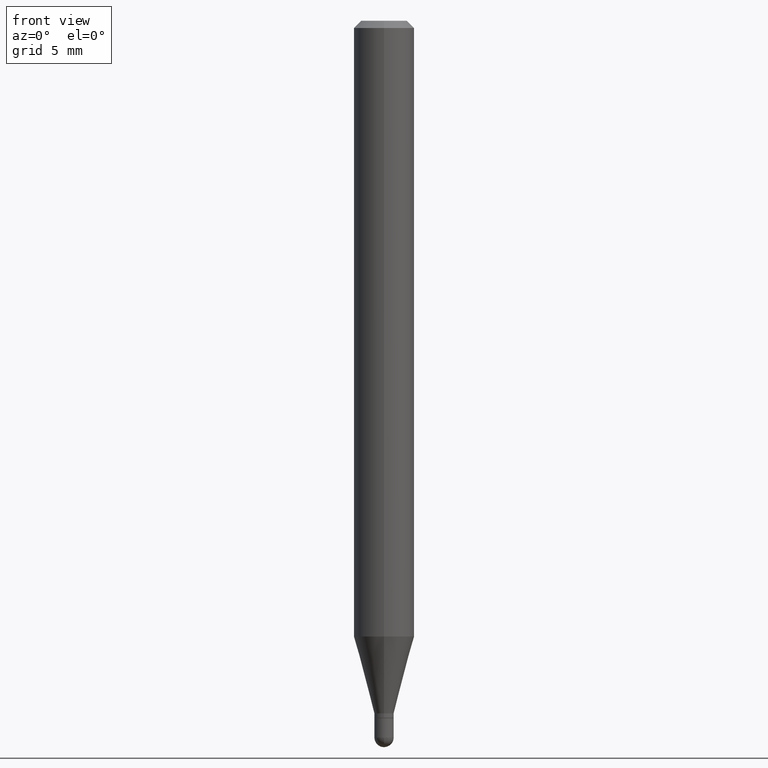
[diagram: clean part render]
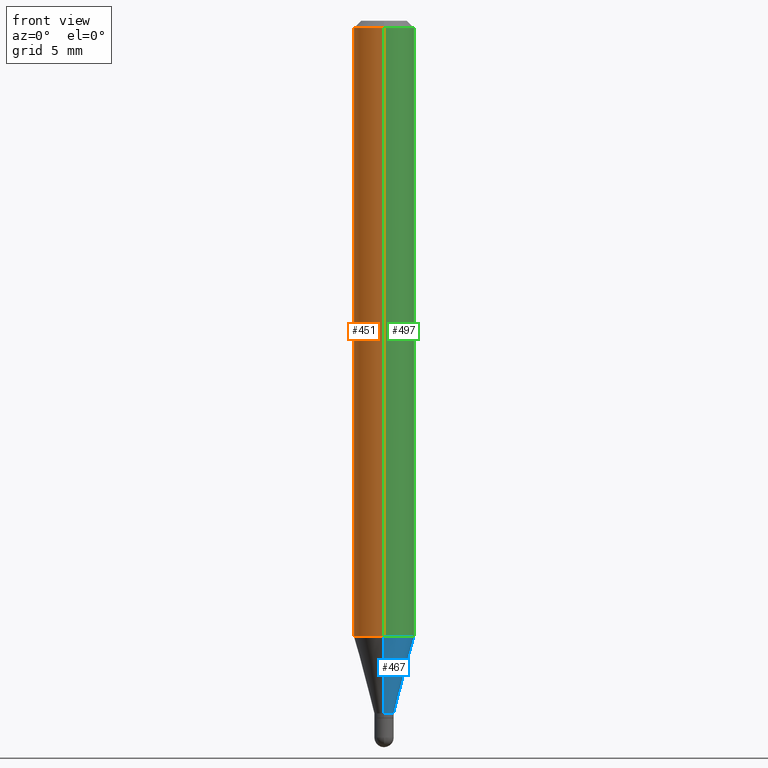
[diagram: same view with three faces highlighted in distinct colors, each labeled with its STEP entity id]
A machine part, front view with three faces highlighted in distinct colors.
Their STEP definitions:

[orange] entity #451 — the highlighted cylindrical surface (edge-blend (fillet) strip) has radius 1.5875 mm, axis along (-0, 0, 1).
#15 = CARTESIAN_POINT ( 'NONE',  ( 4.440892098500934804E-16, 0.06249999999999554523, -1.271387840678323444 ) ) ;
#21 = ORIENTED_EDGE ( 'NONE', *, *, #320, .F. ) ;
#31 = DIRECTION ( 'NONE',  ( -2.445483089663186682E-29, 3.491460884089612684E-15, 1.000000000000000000 ) ) ;
#43 = CARTESIAN_POINT ( 'NONE',  ( -4.364351673553912750E-16, -0.06250000000000005551, -0.01499999999999979128 ) ) ;
#50 = CARTESIAN_POINT ( 'NONE',  ( 4.440892098500938748E-16, 0.06249999999999995143, -0.01500000000000022669 ) ) ;
#52 = DIRECTION ( 'NONE',  ( -2.445483089663186682E-29, 3.491460884089612684E-15, 1.000000000000000000 ) ) ;
#62 = ORIENTED_EDGE ( 'NONE', *, *, #67, .F. ) ;
#67 = EDGE_CURVE ( 'NONE', #390, #173, #347, .T. ) ;
#78 = VERTEX_POINT ( 'NONE', #43 ) ;
#99 = DIRECTION ( 'NONE',  ( -6.982962677686265922E-15, -1.000000000000000000, 3.483106191921935554E-15 ) ) ;
#103 = ORIENTED_EDGE ( 'NONE', *, *, #285, .T. ) ;
#116 = DIRECTION ( 'NONE',  ( -2.445483089663186682E-29, 3.491460884089612684E-15, 1.000000000000000000 ) ) ;
#119 = EDGE_CURVE ( 'NONE', #327, #78, #200, .T. ) ;
#135 = CARTESIAN_POINT ( 'NONE',  ( 3.109157464782232884E-29, -4.439000914235523162E-15, -1.271387840678323222 ) ) ;
#162 = DIRECTION ( 'NONE',  ( -2.445483089663186682E-29, 3.491460884089612684E-15, 1.000000000000000000 ) ) ;
#173 = VERTEX_POINT ( 'NONE', #50 ) ;
#182 = CARTESIAN_POINT ( 'NONE',  ( -4.364351673553605587E-16, -0.06250000000000445477, -1.271387840678323000 ) ) ;
#183 = ORIENTED_EDGE ( 'NONE', *, *, #119, .T. ) ;
#184 = CYLINDRICAL_SURFACE ( 'NONE', #457, 0.06250000000000000000 ) ;
#189 = DIRECTION ( 'NONE',  ( -6.982962677686265922E-15, -1.000000000000000000, 3.491460884089612684E-15 ) ) ;
#200 = LINE ( 'NONE', #206, #204 ) ;
#204 = VECTOR ( 'NONE', #162, 39.37007874015748143 ) ;
#206 = CARTESIAN_POINT ( 'NONE',  ( -4.364351673553916201E-16, -0.06250000000000000000, 2.182163052556007927E-16 ) ) ;
#249 = AXIS2_PLACEMENT_3D ( 'NONE', #405, #52, #99 ) ;
#252 = DIRECTION ( 'NONE',  ( -6.982962677686265922E-15, -1.000000000000000000, 4.370956789862821150E-15 ) ) ;
#283 = VECTOR ( 'NONE', #116, 39.37007874015748143 ) ;
#285 = EDGE_CURVE ( 'NONE', #390, #327, #393, .T. ) ;
#290 = EDGE_LOOP ( 'NONE', ( #62, #103, #183, #21 ) ) ;
#320 = EDGE_CURVE ( 'NONE', #173, #78, #464, .T. ) ;
#327 = VERTEX_POINT ( 'NONE', #182 ) ;
#347 = LINE ( 'NONE', #465, #283 ) ;
#351 = AXIS2_PLACEMENT_3D ( 'NONE', #135, #444, #252 ) ;
#383 = FACE_OUTER_BOUND ( 'NONE', #290, .T. ) ;
#389 = CARTESIAN_POINT ( 'NONE',  ( 0.000000000000000000, 0.000000000000000000, 0.000000000000000000 ) ) ;
#390 = VERTEX_POINT ( 'NONE', #15 ) ;
#393 = CIRCLE ( 'NONE', #351, 0.06250000000000000000 ) ;
#405 = CARTESIAN_POINT ( 'NONE',  ( 3.668224634494782440E-31, -5.237191326134422452E-17, -0.01500000000000000812 ) ) ;
#444 = DIRECTION ( 'NONE',  ( -2.445483089663186682E-29, 3.491460884089612684E-15, 1.000000000000000000 ) ) ;
#451 = ADVANCED_FACE ( 'NONE', ( #383 ), #184, .T. ) ;
#457 = AXIS2_PLACEMENT_3D ( 'NONE', #389, #31, #189 ) ;
#464 = CIRCLE ( 'NONE', #249, 0.06250000000000000000 ) ;
#465 = CARTESIAN_POINT ( 'NONE',  ( 4.440892098500625669E-16, 0.06250000000000000000, -2.182163052556007927E-16 ) ) ;

[blue] entity #467 — the highlighted conical surface has half-angle 15 deg.
#14 = CIRCLE ( 'NONE', #508, 0.01999999999999992062 ) ;
#15 = CARTESIAN_POINT ( 'NONE',  ( 4.440892098500934804E-16, 0.06249999999999554523, -1.271387840678323444 ) ) ;
#18 = EDGE_CURVE ( 'NONE', #66, #390, #461, .T. ) ;
#51 = EDGE_CURVE ( 'NONE', #175, #66, #14, .T. ) ;
#66 = VERTEX_POINT ( 'NONE', #192 ) ;
#68 = CARTESIAN_POINT ( 'NONE',  ( 3.497040818218357490E-29, -4.992789064248145932E-15, -1.429999999999999938 ) ) ;
#88 = CARTESIAN_POINT ( 'NONE',  ( -1.396592535536897664E-16, -0.02000000000000491315, -1.429999999999999938 ) ) ;
#90 = VECTOR ( 'NONE', #485, 39.37007874015748143 ) ;
#113 = DIRECTION ( 'NONE',  ( -6.982962677686265133E-15, -1.000000000000000000, 0.000000000000000000 ) ) ;
#144 = FACE_OUTER_BOUND ( 'NONE', #468, .T. ) ;
#149 = DIRECTION ( 'NONE',  ( -2.445483089663186682E-29, 3.491460884089612684E-15, 1.000000000000000000 ) ) ;
#150 = CARTESIAN_POINT ( 'NONE',  ( 3.497040818218357490E-29, -4.992789064248145932E-15, -1.429999999999999938 ) ) ;
#168 = CARTESIAN_POINT ( 'NONE',  ( 3.109157464782232884E-29, -4.439000914235523162E-15, -1.271387840678323222 ) ) ;
#175 = VERTEX_POINT ( 'NONE', #88 ) ;
#182 = CARTESIAN_POINT ( 'NONE',  ( -4.364351673553605587E-16, -0.06250000000000445477, -1.271387840678323000 ) ) ;
#192 = CARTESIAN_POINT ( 'NONE',  ( 2.930988785010741768E-16, 0.01999999999999492462, -1.429999999999999938 ) ) ;
#208 = DIRECTION ( 'NONE',  ( -2.445483089663186682E-29, 3.491460884089612684E-15, 1.000000000000000000 ) ) ;
#213 = CARTESIAN_POINT ( 'NONE',  ( -1.396592535536897664E-16, -0.02000000000000491315, -1.429999999999999938 ) ) ;
#263 = DIRECTION ( 'NONE',  ( -2.445483089663186682E-29, 3.491460884089612684E-15, 1.000000000000000000 ) ) ;
#302 = DIRECTION ( 'NONE',  ( 1.839019923739603076E-15, 0.2588190451025253469, 0.9659258262890670910 ) ) ;
#307 = VECTOR ( 'NONE', #302, 39.37007874015748143 ) ;
#327 = VERTEX_POINT ( 'NONE', #182 ) ;
#328 = LINE ( 'NONE', #213, #90 ) ;
#329 = EDGE_CURVE ( 'NONE', #327, #390, #359, .T. ) ;
#340 = ORIENTED_EDGE ( 'NONE', *, *, #329, .F. ) ;
#344 = CONICAL_SURFACE ( 'NONE', #401, 0.01999999999999992062, 0.2617993877991506846 ) ;
#359 = CIRCLE ( 'NONE', #424, 0.06250000000000000000 ) ;
#380 = ORIENTED_EDGE ( 'NONE', *, *, #51, .T. ) ;
#385 = CARTESIAN_POINT ( 'NONE',  ( 1.421085471520544049E-16, 0.01999999999999492462, -1.429999999999999938 ) ) ;
#390 = VERTEX_POINT ( 'NONE', #15 ) ;
#401 = AXIS2_PLACEMENT_3D ( 'NONE', #68, #149, #113 ) ;
#406 = EDGE_CURVE ( 'NONE', #175, #327, #328, .T. ) ;
#424 = AXIS2_PLACEMENT_3D ( 'NONE', #168, #208, #492 ) ;
#425 = DIRECTION ( 'NONE',  ( -6.982962677686265133E-15, -1.000000000000000000, 0.000000000000000000 ) ) ;
#427 = ORIENTED_EDGE ( 'NONE', *, *, #406, .F. ) ;
#450 = ORIENTED_EDGE ( 'NONE', *, *, #18, .T. ) ;
#461 = LINE ( 'NONE', #385, #307 ) ;
#467 = ADVANCED_FACE ( 'NONE', ( #144 ), #344, .T. ) ;
#468 = EDGE_LOOP ( 'NONE', ( #380, #450, #340, #427 ) ) ;
#485 = DIRECTION ( 'NONE',  ( -1.807323732225332900E-15, -0.2588190451025185745, 0.9659258262890689783 ) ) ;
#492 = DIRECTION ( 'NONE',  ( -6.982962677686265922E-15, -1.000000000000000000, 4.370956789862821150E-15 ) ) ;
#508 = AXIS2_PLACEMENT_3D ( 'NONE', #150, #263, #425 ) ;

[green] entity #497 — the highlighted cylindrical surface (edge-blend (fillet) strip) has radius 1.5875 mm, axis along (-0, 0, 1).
#15 = CARTESIAN_POINT ( 'NONE',  ( 4.440892098500934804E-16, 0.06249999999999554523, -1.271387840678323444 ) ) ;
#28 = DIRECTION ( 'NONE',  ( -2.445483089663186682E-29, 3.491460884089612684E-15, 1.000000000000000000 ) ) ;
#43 = CARTESIAN_POINT ( 'NONE',  ( -4.364351673553912750E-16, -0.06250000000000005551, -0.01499999999999979128 ) ) ;
#50 = CARTESIAN_POINT ( 'NONE',  ( 4.440892098500938748E-16, 0.06249999999999995143, -0.01500000000000022669 ) ) ;
#64 = AXIS2_PLACEMENT_3D ( 'NONE', #511, #123, #271 ) ;
#67 = EDGE_CURVE ( 'NONE', #390, #173, #347, .T. ) ;
#78 = VERTEX_POINT ( 'NONE', #43 ) ;
#116 = DIRECTION ( 'NONE',  ( -2.445483089663186682E-29, 3.491460884089612684E-15, 1.000000000000000000 ) ) ;
#119 = EDGE_CURVE ( 'NONE', #327, #78, #200, .T. ) ;
#123 = DIRECTION ( 'NONE',  ( -2.445483089663186682E-29, 3.491460884089612684E-15, 1.000000000000000000 ) ) ;
#131 = EDGE_CURVE ( 'NONE', #78, #173, #146, .T. ) ;
#146 = CIRCLE ( 'NONE', #64, 0.06250000000000000000 ) ;
#155 = CYLINDRICAL_SURFACE ( 'NONE', #220, 0.06250000000000000000 ) ;
#162 = DIRECTION ( 'NONE',  ( -2.445483089663186682E-29, 3.491460884089612684E-15, 1.000000000000000000 ) ) ;
#168 = CARTESIAN_POINT ( 'NONE',  ( 3.109157464782232884E-29, -4.439000914235523162E-15, -1.271387840678323222 ) ) ;
#171 = EDGE_LOOP ( 'NONE', ( #195, #458, #218, #404 ) ) ;
#173 = VERTEX_POINT ( 'NONE', #50 ) ;
#182 = CARTESIAN_POINT ( 'NONE',  ( -4.364351673553605587E-16, -0.06250000000000445477, -1.271387840678323000 ) ) ;
#195 = ORIENTED_EDGE ( 'NONE', *, *, #329, .T. ) ;
#200 = LINE ( 'NONE', #206, #204 ) ;
#204 = VECTOR ( 'NONE', #162, 39.37007874015748143 ) ;
#206 = CARTESIAN_POINT ( 'NONE',  ( -4.364351673553916201E-16, -0.06250000000000000000, 2.182163052556007927E-16 ) ) ;
#208 = DIRECTION ( 'NONE',  ( -2.445483089663186682E-29, 3.491460884089612684E-15, 1.000000000000000000 ) ) ;
#218 = ORIENTED_EDGE ( 'NONE', *, *, #131, .F. ) ;
#220 = AXIS2_PLACEMENT_3D ( 'NONE', #456, #28, #460 ) ;
#271 = DIRECTION ( 'NONE',  ( -6.982962677686265922E-15, -1.000000000000000000, 3.483106191921935554E-15 ) ) ;
#283 = VECTOR ( 'NONE', #116, 39.37007874015748143 ) ;
#327 = VERTEX_POINT ( 'NONE', #182 ) ;
#329 = EDGE_CURVE ( 'NONE', #327, #390, #359, .T. ) ;
#347 = LINE ( 'NONE', #465, #283 ) ;
#359 = CIRCLE ( 'NONE', #424, 0.06250000000000000000 ) ;
#390 = VERTEX_POINT ( 'NONE', #15 ) ;
#404 = ORIENTED_EDGE ( 'NONE', *, *, #119, .F. ) ;
#424 = AXIS2_PLACEMENT_3D ( 'NONE', #168, #208, #492 ) ;
#456 = CARTESIAN_POINT ( 'NONE',  ( 0.000000000000000000, 0.000000000000000000, 0.000000000000000000 ) ) ;
#458 = ORIENTED_EDGE ( 'NONE', *, *, #67, .T. ) ;
#460 = DIRECTION ( 'NONE',  ( -6.982962677686265922E-15, -1.000000000000000000, 3.491460884089612684E-15 ) ) ;
#465 = CARTESIAN_POINT ( 'NONE',  ( 4.440892098500625669E-16, 0.06250000000000000000, -2.182163052556007927E-16 ) ) ;
#492 = DIRECTION ( 'NONE',  ( -6.982962677686265922E-15, -1.000000000000000000, 4.370956789862821150E-15 ) ) ;
#497 = ADVANCED_FACE ( 'NONE', ( #500 ), #155, .T. ) ;
#500 = FACE_OUTER_BOUND ( 'NONE', #171, .T. ) ;
#511 = CARTESIAN_POINT ( 'NONE',  ( 3.668224634494782440E-31, -5.237191326134422452E-17, -0.01500000000000000812 ) ) ;